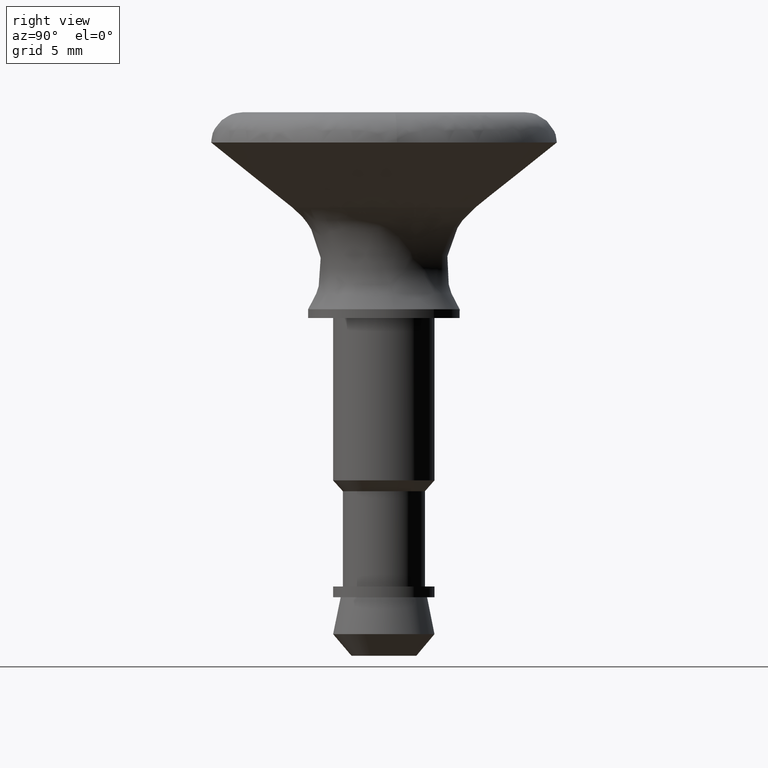
[diagram: clean part render]
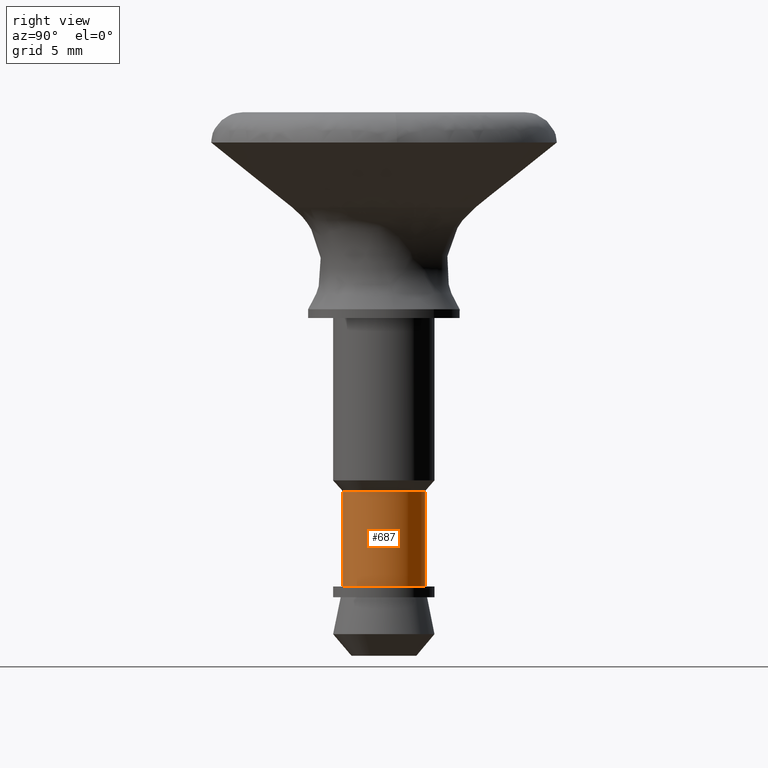
[diagram: same view with one face highlighted and labeled with its STEP entity id]
A machine part, right view. The second image highlights one B-rep face of the part: STEP entity #687.
In plain terms, the highlighted face is a freeform B-spline surface patch.
Its self-contained STEP definition (entity closure, byte-faithful):
#574=CARTESIAN_POINT('',(-0.115992225116228,1.896456117001547,-7.890000000000000));
#575=CARTESIAN_POINT('',(1.780463891885319,2.012448342117775,-7.889999999999999));
#576=CARTESIAN_POINT('',(1.896456117001547,0.115992225116228,-7.890000000000000));
#577=CARTESIAN_POINT('',(2.012448342117775,-1.780463891885319,-7.889999999999999));
#578=CARTESIAN_POINT('',(0.115992225116228,-1.896456117001547,-7.890000000000000));
#579=CARTESIAN_POINT('',(-0.115992225116228,1.896456117001547,-12.512750000000000));
#580=CARTESIAN_POINT('',(1.780463891885319,2.012448342117775,-12.512750000000002));
#581=CARTESIAN_POINT('',(1.896456117001547,0.115992225116228,-12.512750000000000));
#582=CARTESIAN_POINT('',(2.012448342117775,-1.780463891885319,-12.512750000000002));
#583=CARTESIAN_POINT('',(0.115992225116228,-1.896456117001547,-12.512750000000000));
#591=(BOUNDED_SURFACE()B_SPLINE_SURFACE(2,1,((#574,#579),(#575,#580),(#576,#581),(#577,#582),(#578,#583)),.UNSPECIFIED.,.F.,.F.,.U.)B_SPLINE_SURFACE_WITH_KNOTS((3,2,3),(2,2),(0.0,3.148023074035522,6.296046148071044),(0.0,4.622750000000004),.UNSPECIFIED.)GEOMETRIC_REPRESENTATION_ITEM()RATIONAL_B_SPLINE_SURFACE(((1.0,1.0),(0.707106781186548,0.707106781186548),(1.0,1.0),(0.707106781186548,0.707106781186548),(1.0,1.0)))REPRESENTATION_ITEM('')SURFACE());
#592=CARTESIAN_POINT('',(-0.115992225133933,1.896456117000464,-8.0));
#593=VERTEX_POINT('',#592);
#594=CARTESIAN_POINT('',(1.601776092838539,1.021916507554550,-7.999999999999536));
#595=VERTEX_POINT('',#594);
#596=CARTESIAN_POINT('',(-0.115992225133933,1.896456117000464,-8.0));
#597=CARTESIAN_POINT('',(-0.058050250285074,1.900000000000000,-8.0));
#598=CARTESIAN_POINT('',(0.0,1.900000000000000,-8.0));
#599=CARTESIAN_POINT('',(1.041567946417864,1.900000000000000,-8.0));
#600=CARTESIAN_POINT('',(1.601776092838539,1.021916507554550,-7.999999999999536));
#608=(BOUNDED_CURVE()B_SPLINE_CURVE(2,(#596,#597,#598,#599,#600),.UNSPECIFIED.,.F.,.U.)B_SPLINE_CURVE_WITH_KNOTS((3,2,3),(0.239332962238747,0.250000000000000,0.407950112626323),.UNSPECIFIED.)CURVE()GEOMETRIC_REPRESENTATION_ITEM()RATIONAL_B_SPLINE_CURVE((0.976072041666297,0.987502787899607,1.0,0.814949932403715,0.863729296954166))REPRESENTATION_ITEM(''));
#609=EDGE_CURVE('',#593,#595,#608,.T.);
#610=ORIENTED_EDGE('',*,*,#609,.T.);
#611=CARTESIAN_POINT('',(1.900000000000000,0.0,-8.0));
#612=VERTEX_POINT('',#611);
#613=CARTESIAN_POINT('',(1.601776092838539,1.021916507554550,-7.999999999999536));
#614=CARTESIAN_POINT('',(1.900000000000000,0.554473305229020,-8.000000000000002));
#615=CARTESIAN_POINT('',(1.900000000000000,0.0,-8.0));
#623=(BOUNDED_CURVE()B_SPLINE_CURVE(2,(#613,#614,#615),.UNSPECIFIED.,.F.,.U.)B_SPLINE_CURVE_WITH_KNOTS((3,3),(0.407950112626323,0.500000000000000),.UNSPECIFIED.)CURVE()GEOMETRIC_REPRESENTATION_ITEM()RATIONAL_B_SPLINE_CURVE((0.863729296954166,0.892156848782832,1.0))REPRESENTATION_ITEM(''));
#624=EDGE_CURVE('',#595,#612,#623,.T.);
#625=ORIENTED_EDGE('',*,*,#624,.T.);
#626=CARTESIAN_POINT('',(0.132532253520675,-1.895299525548260,-7.999999999997035));
#627=VERTEX_POINT('',#626);
#628=CARTESIAN_POINT('',(1.900000000000000,0.0,-8.0));
#629=CARTESIAN_POINT('',(1.899997476692929,-1.771742578669930,-7.999999999998518));
#630=CARTESIAN_POINT('',(0.132532253520675,-1.895299525548260,-7.999999999997036));
#638=(BOUNDED_CURVE()B_SPLINE_CURVE(2,(#628,#629,#630),.UNSPECIFIED.,.F.,.U.)B_SPLINE_CURVE_WITH_KNOTS((3,3),(0.500000000000000,0.737829682995063),.UNSPECIFIED.)CURVE()GEOMETRIC_REPRESENTATION_ITEM()RATIONAL_B_SPLINE_CURVE((1.0,0.721365194472772,0.972871408704998))REPRESENTATION_ITEM(''));
#639=EDGE_CURVE('',#612,#627,#638,.T.);
#640=ORIENTED_EDGE('',*,*,#639,.T.);
#641=CARTESIAN_POINT('',(0.115992225133933,-1.896456117000464,-12.400000000000000));
#642=VERTEX_POINT('',#641);
#643=CARTESIAN_POINT('',(0.132532253520675,-1.895299525548260,-7.999999999997035));
#644=CARTESIAN_POINT('',(0.115992225133933,-1.896456117000464,-12.400000000000000));
#645=QUASI_UNIFORM_CURVE('',1,(#643,#644),.UNSPECIFIED.,.F.,.U.);
#646=EDGE_CURVE('',#627,#642,#645,.T.);
#647=ORIENTED_EDGE('',*,*,#646,.T.);
#648=CARTESIAN_POINT('',(1.900000000000000,0.0,-12.400000000000000));
#649=VERTEX_POINT('',#648);
#650=CARTESIAN_POINT('',(1.900000000000000,0.0,-12.400000000000000));
#651=CARTESIAN_POINT('',(1.900000000000000,-1.787341527087395,-12.400000000000002));
#652=CARTESIAN_POINT('',(0.115992225133933,-1.896456117000464,-12.400000000000006));
#660=(BOUNDED_CURVE()B_SPLINE_CURVE(2,(#650,#651,#652),.UNSPECIFIED.,.F.,.U.)B_SPLINE_CURVE_WITH_KNOTS((3,3),(0.500000000000000,0.739332962238747),.UNSPECIFIED.)CURVE()GEOMETRIC_REPRESENTATION_ITEM()RATIONAL_B_SPLINE_CURVE((1.0,0.719603993286939,0.976072041666299))REPRESENTATION_ITEM(''));
#661=EDGE_CURVE('',#649,#642,#660,.T.);
#662=ORIENTED_EDGE('',*,*,#661,.F.);
#663=CARTESIAN_POINT('',(-0.115992225133933,1.896456117000464,-12.400000000000000));
#664=VERTEX_POINT('',#663);
#665=CARTESIAN_POINT('',(-0.115992225133933,1.896456117000464,-12.399999999999999));
#666=CARTESIAN_POINT('',(-0.058050250285074,1.900000000000000,-12.400000000000000));
#667=CARTESIAN_POINT('',(0.0,1.900000000000000,-12.400000000000000));
#668=CARTESIAN_POINT('',(1.900000000000000,1.900000000000000,-12.399999999999999));
#669=CARTESIAN_POINT('',(1.900000000000000,0.0,-12.400000000000000));
#677=(BOUNDED_CURVE()B_SPLINE_CURVE(2,(#665,#666,#667,#668,#669),.UNSPECIFIED.,.F.,.U.)B_SPLINE_CURVE_WITH_KNOTS((3,2,3),(0.239332962238747,0.250000000000000,0.500000000000000),.UNSPECIFIED.)CURVE()GEOMETRIC_REPRESENTATION_ITEM()RATIONAL_B_SPLINE_CURVE((0.976072041666297,0.987502787899607,1.0,0.707106781186547,1.0))REPRESENTATION_ITEM(''));
#678=EDGE_CURVE('',#664,#649,#677,.T.);
#679=ORIENTED_EDGE('',*,*,#678,.F.);
#680=CARTESIAN_POINT('',(-0.115992225133933,1.896456117000464,-8.0));
#681=CARTESIAN_POINT('',(-0.115992225133933,1.896456117000464,-12.400000000000000));
#682=QUASI_UNIFORM_CURVE('',1,(#680,#681),.UNSPECIFIED.,.F.,.U.);
#683=EDGE_CURVE('',#593,#664,#682,.T.);
#684=ORIENTED_EDGE('',*,*,#683,.F.);
#685=EDGE_LOOP('',(#610,#625,#640,#647,#662,#679,#684));
#686=FACE_OUTER_BOUND('',#685,.T.);
#687=ADVANCED_FACE('',(#686),#591,.T.);